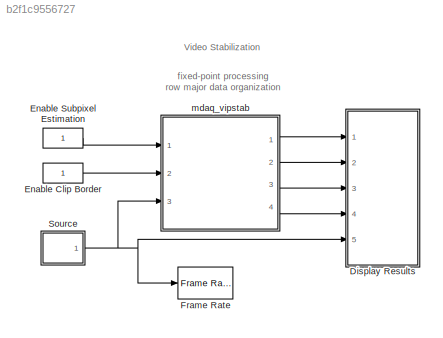
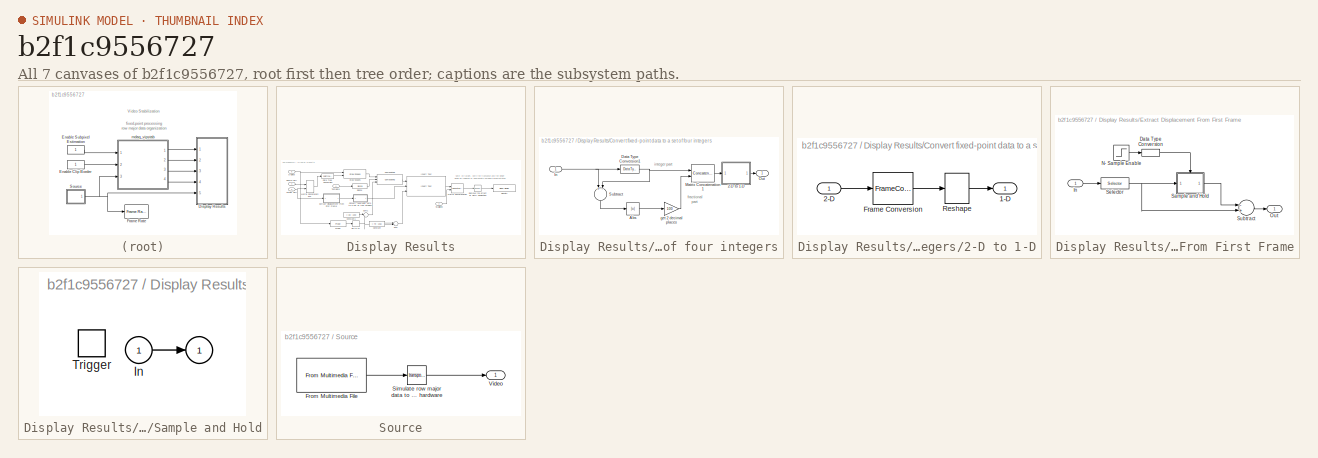
[diagram: thumbnail index - all 7 canvases of the model, root first then tree order]
MODEL slx_b2f1c9556727
KIND model
CONFIG PreLoadFcn = template_orig = fliplr([109 100]);\ntemplate_size = fliplr([18 22]);\nsearch_border = fliplr([10 15]);\npos.template_orig = fliplr(template_orig);\npos.template_size = template_size;\npos.search_border = search_border;\npos.template_center = floor((template_size-1)/2);\npos.template_center_pos = pos.template_orig + ...\n    pos.template_center - 1;
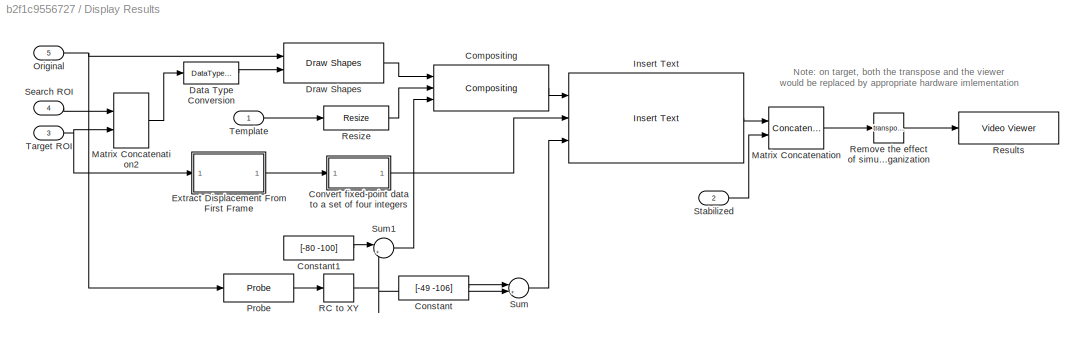
BLOCK [SubSystem] Display Results
  FunctionWithSeparateData = off
  MaskHideContents = off
  MinAlgLoopOccurrences = off
  Opaque = off
  Ports = [5]
  PropExecContextOutsideSubsystem = off
  RTWSystemCode = Auto
  RequestExecContextInheritance = off
  Variant = off
BLOCK [Reference] Display Results/Compositing  REF=visiontextngfix/Compositing
  LockScale = off
  Ports = [3, 1]
  SourceBlock = visiontextngfix/Compositing
  SourceType = Compositing
  accumFracLength = 10
  accumMode = Same as product output
  accumWordLength = 32
  bFacSrc = Specify via dialog
  bFactor = 1
  coordinates = [160 220]
  firstCoeffFracLength = 15
  firstCoeffMode = Same word length as input
  firstCoeffWordLength = 16
  mFacSrc = Specify via dialog
  mFactor = 1
  operation = Binary mask
  outputFracLength = 10
  outputMode = Same as first input
  outputWordLength = 32
  overflowMode = off
  prodOutputFracLength = 10
  prodOutputMode = Binary point scaling
  prodOutputWordLength = 32
  roundingMode = Floor
  source = Input port
BLOCK [Constant] Display Results/Constant
  OutDataTypeStr = int16
  Value = [-49 -106]
BLOCK [Constant] Display Results/Constant1
  OutDataTypeStr = int16
  Value = [-80 -100]
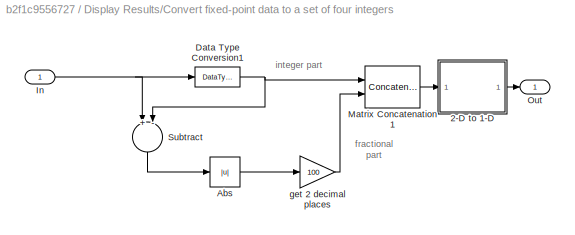
BLOCK [SubSystem] Display Results/Convert fixed-point data to a set of four integers
  FunctionWithSeparateData = off
  MaskHideContents = off
  MinAlgLoopOccurrences = off
  Opaque = off
  Ports = [1, 1]
  PropExecContextOutsideSubsystem = off
  RTWSystemCode = Auto
  RequestExecContextInheritance = off
  Variant = off
BLOCK [SubSystem] Display Results/Convert fixed-point data to a set of four integers/2-D to 1-D
  FunctionWithSeparateData = off
  MaskHideContents = off
  MinAlgLoopOccurrences = off
  Opaque = off
  Ports = [1, 1]
  PropExecContextOutsideSubsystem = off
  RTWSystemCode = Auto
  RequestExecContextInheritance = off
  Variant = off
BLOCK [Outport] Display Results/Convert fixed-point data to a set of four integers/2-D to 1-D/1-D
  IconDisplay = Port number
BLOCK [Inport] Display Results/Convert fixed-point data to a set of four integers/2-D to 1-D/2-D
  IconDisplay = Port number
BLOCK [FrameConversion] Display Results/Convert fixed-point data to a set of four integers/2-D to 1-D/Frame Conversion
  InheritSamplingMode = off
  OutFrame = Sample-based
  Ports = [1, 1]
BLOCK [Reshape] Display Results/Convert fixed-point data to a set of four integers/2-D to 1-D/Reshape
  Ports = [1, 1]
BLOCK [Abs] Display Results/Convert fixed-point data to a set of four integers/Abs
  SaturateOnIntegerOverflow = off
BLOCK [DataTypeConversion] Display Results/Convert fixed-point data to a set of four integers/Data Type Conversion1
  OutDataTypeStr = int16
  SaturateOnIntegerOverflow = off
BLOCK [Inport] Display Results/Convert fixed-point data to a set of four integers/In
  IconDisplay = Port number
BLOCK [Concatenate] Display Results/Convert fixed-point data to a set of four integers/Matrix Concatenation1
  Mode = Multidimensional array
  Ports = [2, 1]
BLOCK [Outport] Display Results/Convert fixed-point data to a set of four integers/Out
  IconDisplay = Port number
BLOCK [Sum] Display Results/Convert fixed-point data to a set of four integers/Subtract
  InputSameDT = off
  Inputs = +-
  Ports = [2, 1]
  SaturateOnIntegerOverflow = off
BLOCK [Gain] Display Results/Convert fixed-point data to a set of four integers/get 2 decimal places
  Gain = 100
  OutDataTypeStr = fixdt(1,16,0)
  ParamDataTypeStr = Inherit: Inherit via internal rule
BLOCK [DataTypeConversion] Display Results/Data Type Conversion
  OutDataTypeStr = int16
  RndMeth = Floor
  SaturateOnIntegerOverflow = off
BLOCK [Reference] Display Results/Draw Shapes  REF=visiontextngfix/Draw Shapes
  LockScale = off
  Ports = [2, 1]
  SourceBlock = visiontextngfix/Draw Shapes
  SourceType = Draw Shapes
  accumFracLength = 14
  accumMode = Same as product output
  accumWordLength = 32
  antialiasing = off
  color = [200 255 100]
  display = White
  fill = off
  fillClrSource = Specify via dialog
  imagePorts = One multidimensional signal
  inType = Intensity
  intensity = 200
  memoryFracLength = 15
  memoryMode = Specify word length
  memoryWordLength = 16
  opacity = 0.6
  overflowMode = off
  prodOutputFracLength = 14
  prodOutputMode = Binary point scaling
  prodOutputWordLength = 32
  roundingMode = Floor
  shape = Rectangles
  viewport = Entire image
BLOCK [SubSystem] Display Results/Extract Displacement From First Frame
  FunctionWithSeparateData = off
  MaskHideContents = off
  MinAlgLoopOccurrences = off
  Opaque = off
  Ports = [1, 1]
  PropExecContextOutsideSubsystem = off
  RTWSystemCode = Auto
  RequestExecContextInheritance = off
  Variant = off
BLOCK [DataTypeConversion] Display Results/Extract Displacement From First Frame/Data Type Conversion
  OutDataTypeStr = boolean
  RndMeth = Floor
  SaturateOnIntegerOverflow = off
BLOCK [Inport] Display Results/Extract Displacement From First Frame/In
  IconDisplay = Port number
BLOCK [Step] Display Results/Extract Displacement From First Frame/N- Sample Enable
  Time = 0
BLOCK [Outport] Display Results/Extract Displacement From First Frame/Out
  IconDisplay = Port number
BLOCK [SubSystem] Display Results/Extract Displacement From First Frame/Sample and Hold
  FunctionWithSeparateData = off
  MaskHideContents = off
  MinAlgLoopOccurrences = off
  Opaque = off
  Ports = [1, 1, 0, 1]
  PropExecContextOutsideSubsystem = off
  RTWSystemCode = Auto
  RequestExecContextInheritance = off
  TreatAsAtomicUnit = on
  Variant = off
BLOCK [Outport] Display Results/Extract Displacement From First Frame/Sample and Hold/ 
  IconDisplay = Port number
  InitialOutput = initCond
BLOCK [Inport] Display Results/Extract Displacement From First Frame/Sample and Hold/In
  IconDisplay = Port number
BLOCK [TriggerPort] Display Results/Extract Displacement From First Frame/Sample and Hold/Trigger
  Ports = []
  ZeroCross = off
BLOCK [Selector] Display Results/Extract Displacement From First Frame/Selector
  IndexOptions = Index vector (dialog),Index vector (dialog)
  Indices = 1,[1 2]
  InputPortWidth = 3
  NumberOfDimensions = 2
  OutputSizes = 1,1
  Ports = [1, 1]
BLOCK [Sum] Display Results/Extract Displacement From First Frame/Subtract
  InputSameDT = off
  Inputs = -+
  OutDataTypeStr = Inherit: Inherit via internal rule
  Ports = [2, 1]
  SaturateOnIntegerOverflow = off
BLOCK [Reference] Display Results/Insert Text  REF=visiontextngfix/Insert Text
  Ports = [3, 1]
  SourceBlock = visiontextngfix/Insert Text
  SourceType = Insert Text
  antiAliased = on
  blockFontSize = 14
  dummyVar1 = 0
  dummyVar2 = 0
  dummyVar3 = 0
  dummyVar4 = 0
  fontFace = LucidaTypewriterRegular
  getTextColorFrom = Specify via dialog
  getTextIntensityFrom = Specify via dialog
  getTextLocFrom = Input port
  getTextOpacityFrom = Specify via dialog
  imagePorts = One multidimensional signal
  inputType = Obsolete
  isInputTransposed = on
  textColor = 255
  textIntensity = 255
  textLoc = [214 191]
  textOpacity = 1.0
  theText = '(%+03d.%02d,%+03d.%02d)'
BLOCK [Concatenate] Display Results/Matrix Concatenation
  Mode = Multidimensional array
  Ports = [2, 1]
BLOCK [Concatenate] Display Results/Matrix Concatenation2
  Mode = Multidimensional array
  Ports = [2, 1]
BLOCK [Inport] Display Results/Original
  IconDisplay = Port number
  Port = 5
BLOCK [Probe] Display Results/Probe
  Ports = [1, 1]
  ProbeComplexSignal = off
  ProbeDimensionsDataType = int16
  ProbeSampleTime = off
  ProbeSignalDimensions = on
  ProbeWidth = off
BLOCK [Selector] Display Results/RC to XY
  IndexOptions = Index vector (dialog)
  Indices = [2 1]
  OutputSizes = 1
  Ports = [1, 1]
BLOCK [Math] Display Results/Remove the effect of simulated row major data organization
  Operator = transpose
  Ports = [1, 1]
BLOCK [Reference] Display Results/Resize  REF=visiongeotforms/Resize
  LockScale = off
  Ports = [1, 1]
  SourceBlock = visiongeotforms/Resize
  SourceType = Resize
  accumFracLength = 10
  accumMode = Same as product output
  accumWordLength = 32
  antialias = off
  firstCoeffFracLength = 31
  firstCoeffMode = Same word length as input
  firstCoeffWordLength = 32
  interp_method = Nearest neighbor
  outCols = 25
  outRows = 25
  outRowsCols = [25 35]
  outputFracLength = 10
  outputMode = Same as input
  outputWordLength = 32
  overflowMode = on
  prodOutputFracLength = 10
  prodOutputMode = Binary point scaling
  prodOutputWordLength = 32
  rfactor = 300
  roiFlag = off
  roundingMode = Nearest
  specify = Output size as a percentage of input size
  useROI = off
BLOCK [Reference] Display Results/Results  REF=visionsinks/Video Viewer
  AxisZoom = on
  DefaultConfigurationName = vipscopes.VideoViewerScopeCfg
  FigPos = [97 364 640 263]
  OpenAtMdlStart = on
  Ports = [1]
  SourceBlock = visionsinks/Video Viewer
  SourceType = Video Viewer
  UserDataPersistent = on
  colormapValue = gray(256)
  imagePorts = One multidimensional signal
  inputType = Obsolete7b
  maxInputVal = 255
  minInputVal = 0
  specRange = off
  trueSizedOnce = on
  useColorMap = off
BLOCK [Inport] Display Results/Search ROI
  IconDisplay = Port number
  Port = 4
BLOCK [Inport] Display Results/Stabilized
  IconDisplay = Port number
  Port = 2
BLOCK [Sum] Display Results/Sum
  IconShape = round
  InputSameDT = off
  Inputs = |++
  OutDataTypeStr = Inherit: Inherit via internal rule
  Ports = [2, 1]
  SaturateOnIntegerOverflow = off
BLOCK [Sum] Display Results/Sum1
  IconShape = round
  InputSameDT = off
  Inputs = |++
  OutDataTypeStr = Inherit: Inherit via internal rule
  Ports = [2, 1]
  SaturateOnIntegerOverflow = off
BLOCK [Inport] Display Results/Target ROI
  IconDisplay = Port number
  Port = 3
BLOCK [Inport] Display Results/Template
  IconDisplay = Port number
BLOCK [Constant] Enable Clip Border
  OutDataTypeStr = boolean
  SampleTime = -1
  VectorParams1D = off
BLOCK [Constant] Enable Subpixel Estimation
  OutDataTypeStr = boolean
  SampleTime = -1
  VectorParams1D = off
BLOCK [Reference] Frame Rate  REF=visionsinks/Frame Rate
Display
  Ports = [1]
  SourceBlock = visionsinks/Frame Rate\nDisplay
  SourceType = Frame Rate Display
  UpdateRate = 10
BLOCK [SubSystem] Source
  FunctionWithSeparateData = off
  MaskHideContents = off
  MinAlgLoopOccurrences = off
  Opaque = off
  Ports = [0, 1]
  PropExecContextOutsideSubsystem = off
  RTWSystemCode = Auto
  RequestExecContextInheritance = off
  Variant = off
BLOCK [Reference] Source/From Multimedia File  REF=dspvision/From Multimedia File
  Ports = [0, 1]
  SourceBlock = dspvision/From Multimedia File
  SourceType = From Multimedia File
  audioDataType = int16
  audioFrameSize = 1024
  colorVideoFormat = Separate color signals
  computeAudioFrameSize = off
  dataOrg = Column-major
  fourcc = Intensity
  inheritSampleTime = on
  inputFilename = shaky_car.avi
  isIntensityVideo = off
  loop = on
  noAudioOutput = off
  numPlays = inf
  outSamplingMode = Frame based
  outputEOF = off
  outputStreams = Video and audio
  userDefinedSampleTime = 1/30
  videoDataType = uint8
BLOCK [Math] Source/Simulate row major data to ease implementation on hardware
  Operator = transpose
  Ports = [1, 1]
BLOCK [Outport] Source/Video
  IconDisplay = Port number
BLOCK [ModelReference] mdaq_vipstab
  CopyOfModelName = mdaq_vipstab
  ModelNameDialog = mdaq_vipstab
  ModelReferenceVersion = 1.1886
  Ports = [3, 4]
  Variant = off
ANNOTATION (root): Video Stabilization
ANNOTATION (root): fixed-point processing row major data organization
ANNOTATION Display Results: Note: on target, both the transpose and the viewer would be replaced by appropriate hardware imlementation
ANNOTATION Display Results/Convert fixed-point data to a set of four integers: fractional part
ANNOTATION Display Results/Convert fixed-point data to a set of four integers: integer part
LINE Display Results/Compositing:1 -> Display Results/Insert Text:1
LINE Display Results/Constant1:1 -> Display Results/Sum1:1
LINE Display Results/Constant:1 -> Display Results/Sum:1
LINE Display Results/Convert fixed-point data to a set of four integers/2-D to 1-D/2-D:1 -> Display Results/Convert fixed-point data to a set of four integers/2-D to 1-D/Frame Conversion:1
LINE Display Results/Convert fixed-point data to a set of four integers/2-D to 1-D/Frame Conversion:1 -> Display Results/Convert fixed-point data to a set of four integers/2-D to 1-D/Reshape:1
LINE Display Results/Convert fixed-point data to a set of four integers/2-D to 1-D/Reshape:1 -> Display Results/Convert fixed-point data to a set of four integers/2-D to 1-D/1-D:1
LINE Display Results/Convert fixed-point data to a set of four integers/2-D to 1-D:1 -> Display Results/Convert fixed-point data to a set of four integers/Out:1
LINE Display Results/Convert fixed-point data to a set of four integers/Abs:1 -> Display Results/Convert fixed-point data to a set of four integers/get 2 decimal places:1
NET Display Results/Convert fixed-point data to a set of four integers/Data Type Conversion1:1 -> Display Results/Convert fixed-point data to a set of four integers/Matrix Concatenation1:1, Display Results/Convert fixed-point data to a set of four integers/Subtract:2
NET Display Results/Convert fixed-point data to a set of four integers/In:1 -> Display Results/Convert fixed-point data to a set of four integers/Data Type Conversion1:1, Display Results/Convert fixed-point data to a set of four integers/Subtract:1
LINE Display Results/Convert fixed-point data to a set of four integers/Matrix Concatenation1:1 -> Display Results/Convert fixed-point data to a set of four integers/2-D to 1-D:1
LINE Display Results/Convert fixed-point data to a set of four integers/Subtract:1 -> Display Results/Convert fixed-point data to a set of four integers/Abs:1
LINE Display Results/Convert fixed-point data to a set of four integers/get 2 decimal places:1 -> Display Results/Convert fixed-point data to a set of four integers/Matrix Concatenation1:2
LINE Display Results/Convert fixed-point data to a set of four integers:1 -> Display Results/Insert Text:2
LINE Display Results/Data Type Conversion:1 -> Display Results/Draw Shapes:2
LINE Display Results/Draw Shapes:1 -> Display Results/Compositing:1
LINE Display Results/Extract Displacement From First Frame/Data Type Conversion:1 -> Display Results/Extract Displacement From First Frame/Sample and Hold:trigger
LINE Display Results/Extract Displacement From First Frame/In:1 -> Display Results/Extract Displacement From First Frame/Selector:1
LINE Display Results/Extract Displacement From First Frame/N- Sample Enable:1 -> Display Results/Extract Displacement From First Frame/Data Type Conversion:1
LINE Display Results/Extract Displacement From First Frame/Sample and Hold/In:1 -> Display Results/Extract Displacement From First Frame/Sample and Hold/ :1
LINE Display Results/Extract Displacement From First Frame/Sample and Hold:1 -> Display Results/Extract Displacement From First Frame/Subtract:1
NET Display Results/Extract Displacement From First Frame/Selector:1 -> Display Results/Extract Displacement From First Frame/Sample and Hold:1, Display Results/Extract Displacement From First Frame/Subtract:2
LINE Display Results/Extract Displacement From First Frame/Subtract:1 -> Display Results/Extract Displacement From First Frame/Out:1
LINE Display Results/Extract Displacement From First Frame:1 -> Display Results/Convert fixed-point data to a set of four integers:1
LINE Display Results/Insert Text:1 -> Display Results/Matrix Concatenation:1
LINE Display Results/Matrix Concatenation2:1 -> Display Results/Data Type Conversion:1
LINE Display Results/Matrix Concatenation:1 -> Display Results/Remove the effect of simulated row major data organization:1
NET Display Results/Original:1 -> Display Results/Draw Shapes:1, Display Results/Probe:1
LINE Display Results/Probe:1 -> Display Results/RC to XY:1
NET Display Results/RC to XY:1 -> Display Results/Sum1:2, Display Results/Sum:2
LINE Display Results/Remove the effect of simulated row major data organization:1 -> Display Results/Results:1
LINE Display Results/Resize:1 -> Display Results/Compositing:2
LINE Display Results/Search ROI:1 -> Display Results/Matrix Concatenation2:1
LINE Display Results/Stabilized:1 -> Display Results/Matrix Concatenation:2
LINE Display Results/Sum1:1 -> Display Results/Compositing:3
LINE Display Results/Sum:1 -> Display Results/Insert Text:3
NET Display Results/Target ROI:1 -> Display Results/Extract Displacement From First Frame:1, Display Results/Matrix Concatenation2:2
LINE Display Results/Template:1 -> Display Results/Resize:1
LINE Enable Clip Border:1 -> mdaq_vipstab:2
LINE Enable Subpixel Estimation:1 -> mdaq_vipstab:1
LINE Source/From Multimedia File:1 -> Source/Simulate row major data to ease implementation on hardware:1
LINE Source/Simulate row major data to ease implementation on hardware:1 -> Source/Video:1
NET Source:1 -> Display Results:5, Frame Rate:1, mdaq_vipstab:3
LINE mdaq_vipstab:1 -> Display Results:1
LINE mdaq_vipstab:2 -> Display Results:2
LINE mdaq_vipstab:3 -> Display Results:3
LINE mdaq_vipstab:4 -> Display Results:4
note: NET lines group one-source signal fan-out (src -> all destinations, sorted); 1:1 wires keep LINE
